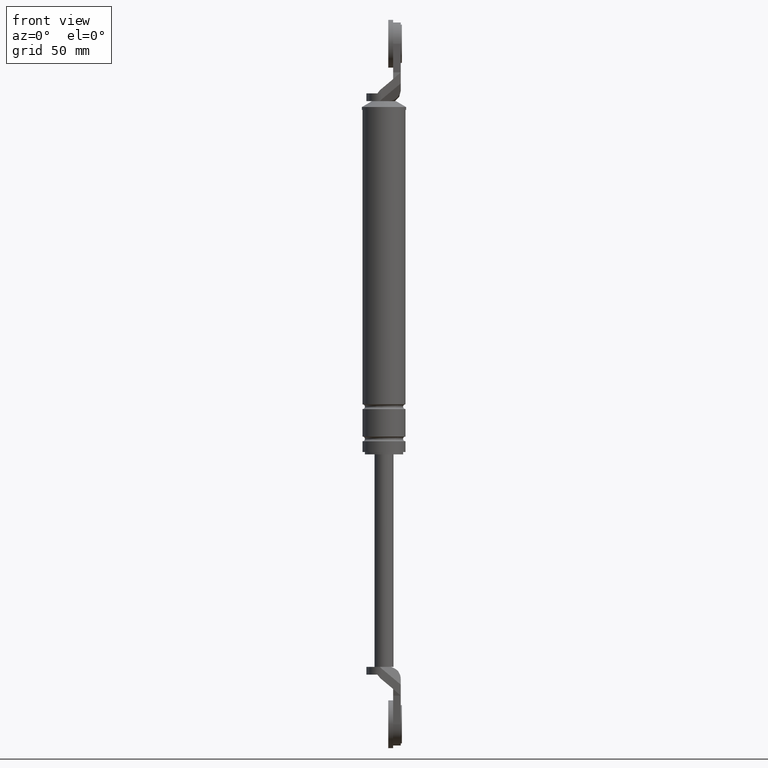
[diagram: clean part render]
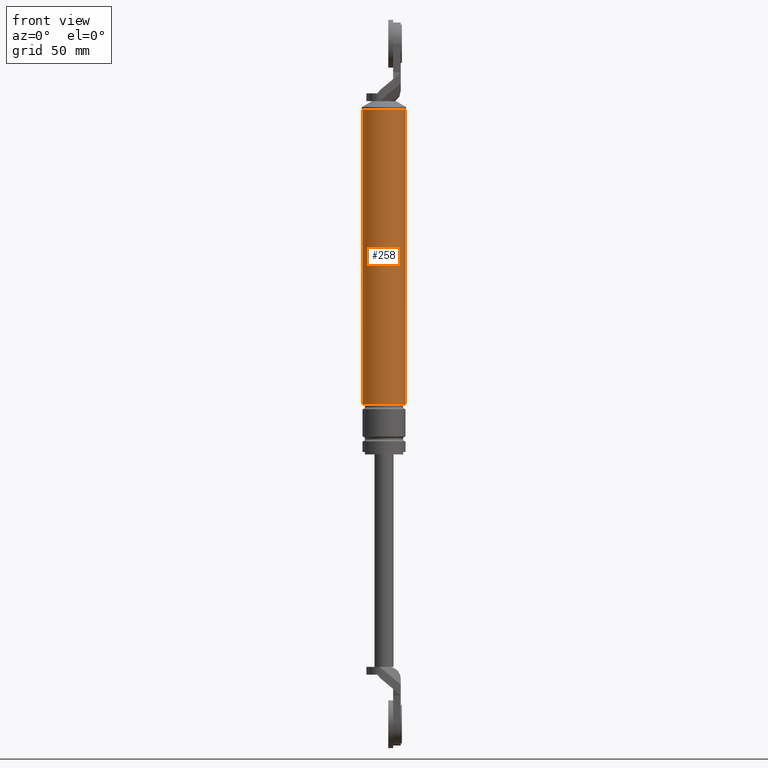
[diagram: same view with one face highlighted and labeled with its STEP entity id]
A machine part, front view. The second image highlights one B-rep face of the part: STEP entity #258.
In plain terms, the highlighted cylindrical surface (edge-blend (fillet) strip) has radius 9 mm, axis along (0, 0, 1).
Its self-contained STEP definition (entity closure, byte-faithful):
#258=ADVANCED_FACE('',(#835),#834,.T.);
#834=CYLINDRICAL_SURFACE('',#1573,9.00000000000E+000);
#835=FACE_OUTER_BOUND('',#1574,.T.);
#1570=CARTESIAN_POINT('',(0.00000000000E+000,3.58204186421E-014,0.00000000000E+000));
#1571=DIRECTION('',(-0.00000000000E+000,-0.00000000000E+000,1.00000000000E+000));
#1572=DIRECTION('',(1.00000000000E+000,0.00000000000E+000,0.00000000000E+000));
#1573=AXIS2_PLACEMENT_3D('',#1570,#1571,#1572);
#1574=EDGE_LOOP('',(#2012,#2013,#2014,#2015));
#2012=ORIENTED_EDGE('',*,*,#2267,.F.);
#2013=ORIENTED_EDGE('',*,*,#2283,.T.);
#2014=ORIENTED_EDGE('',*,*,#2215,.T.);
#2015=ORIENTED_EDGE('',*,*,#2284,.F.);
#2215=EDGE_CURVE('',#2743,#2744,#2745,.T.);
#2267=EDGE_CURVE('',#3086,#3087,#3088,.T.);
#2283=EDGE_CURVE('',#3086,#2743,#3186,.T.);
#2284=EDGE_CURVE('',#3087,#2744,#3192,.T.);
#2743=VERTEX_POINT('',#3920);
#2744=VERTEX_POINT('',#3921);
#2745=CIRCLE('',#3925,9.00000000000E+000);
#3086=VERTEX_POINT('',#4127);
#3087=VERTEX_POINT('',#4128);
#3088=CIRCLE('',#4132,9.00000000000E+000);
#3186=(BOUNDED_CURVE() B_SPLINE_CURVE(1,(#4183,#4184),.UNSPECIFIED.,.F.,.F.) B_SPLINE_CURVE_WITH_KNOTS((2,2),(6.97836706411E-002,9.30216329116E-001),.UNSPECIFIED.) CURVE() GEOMETRIC_REPRESENTATION_ITEM() RATIONAL_B_SPLINE_CURVE((1.00000000000E+000,1.00000000000E+000)) REPRESENTATION_ITEM('') );
#3192=(BOUNDED_CURVE() B_SPLINE_CURVE(1,(#4185,#4186),.UNSPECIFIED.,.F.,.F.) B_SPLINE_CURVE_WITH_KNOTS((2,2),(6.97836706211E-002,9.30216329379E-001),.UNSPECIFIED.) CURVE() GEOMETRIC_REPRESENTATION_ITEM() RATIONAL_B_SPLINE_CURVE((7.50000000000E-001,7.50000000000E-001)) REPRESENTATION_ITEM('') );
#3920=CARTESIAN_POINT('',(9.00000000000E+000,3.61192557345E-014,8.52999850000E+001));
#3921=CARTESIAN_POINT('',(-9.00000000000E+000,3.58204186421E-014,8.52999850000E+001));
#3922=CARTESIAN_POINT('',(0.00000000000E+000,3.58204186421E-014,8.52999850000E+001));
#3923=DIRECTION('',(-0.00000000000E+000,0.00000000000E+000,-1.00000000000E+000));
#3924=DIRECTION('',(-1.00000000000E+000,-1.22460635382E-016,0.00000000000E+000));
#3925=AXIS2_PLACEMENT_3D('',#3922,#3923,#3924);
#4127=CARTESIAN_POINT('',(9.00000000000E+000,3.61192557345E-014,-3.80000150000E+001));
#4128=CARTESIAN_POINT('',(-9.00000000000E+000,3.58204186421E-014,-3.80000150000E+001));
#4129=CARTESIAN_POINT('',(0.00000000000E+000,3.58204186421E-014,-3.80000150000E+001));
#4130=DIRECTION('',(-0.00000000000E+000,0.00000000000E+000,-1.00000000000E+000));
#4131=DIRECTION('',(-1.00000000000E+000,-1.22460635382E-016,0.00000000000E+000));
#4132=AXIS2_PLACEMENT_3D('',#4129,#4130,#4131);
#4183=CARTESIAN_POINT('',(9.00000000000E+000,3.58204186421E-014,-3.80000149971E+001));
#4184=CARTESIAN_POINT('',(9.00000000000E+000,3.58204186421E-014,8.52999849623E+001));
#4185=CARTESIAN_POINT('',(-9.00000000000E+000,3.52310773148E-014,-3.80000150000E+001));
#4186=CARTESIAN_POINT('',(-9.00000000000E+000,3.52310773148E-014,8.52999850000E+001));